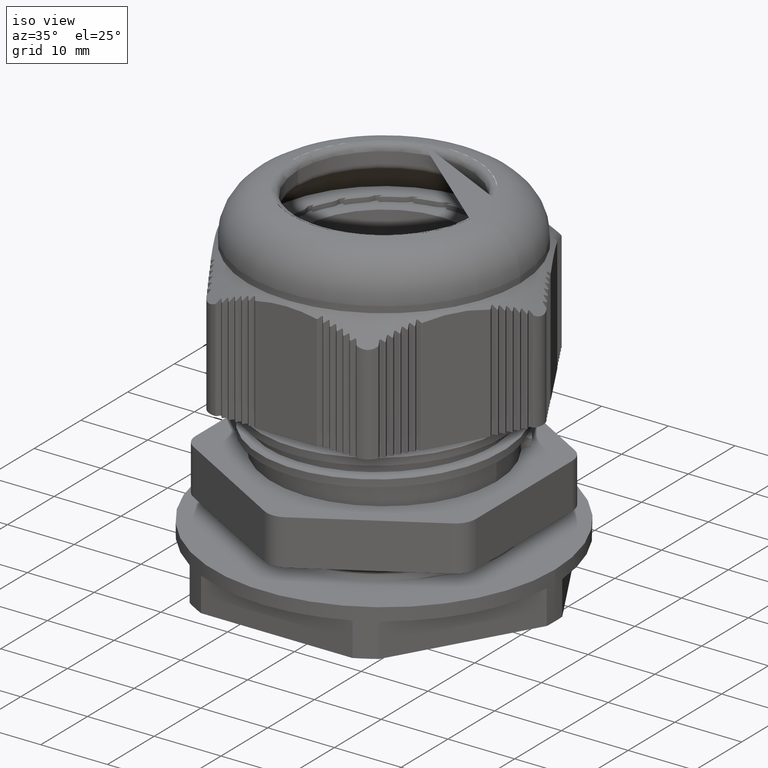
[diagram: clean part render]
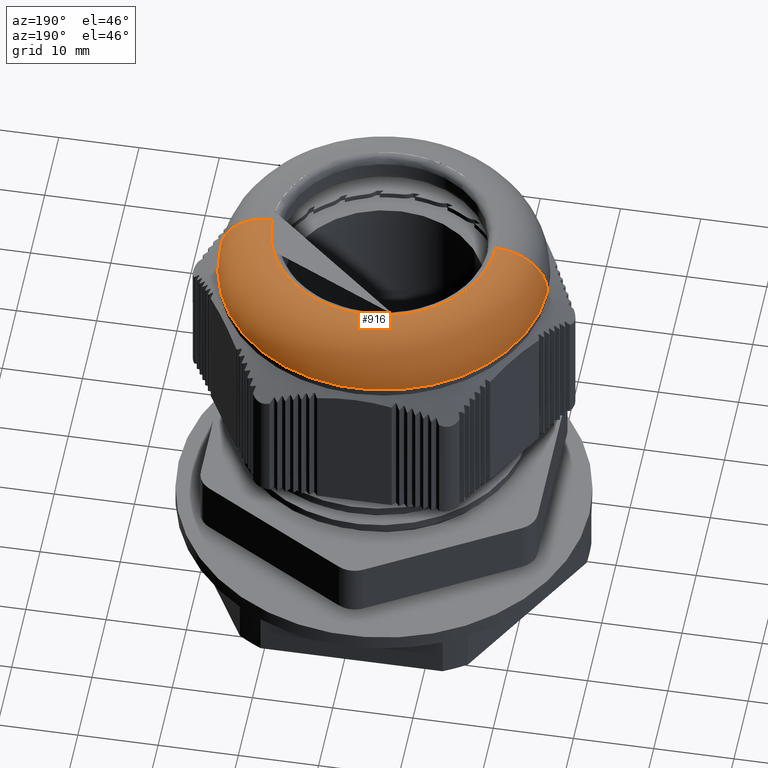
[diagram: tour spotlight — one face highlighted and labeled with its STEP entity id]
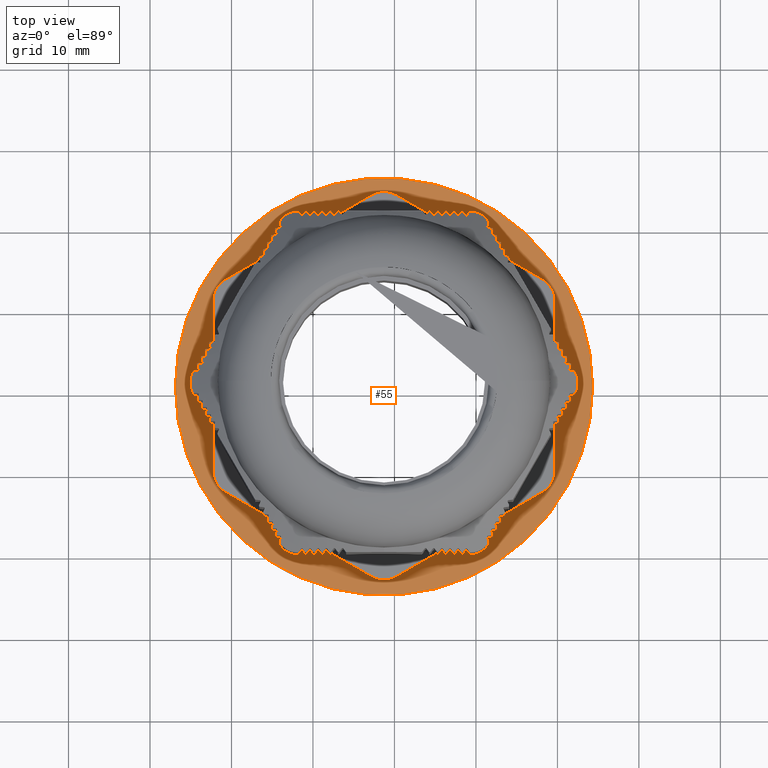
[diagram: tour spotlight — one face highlighted and labeled with its STEP entity id]
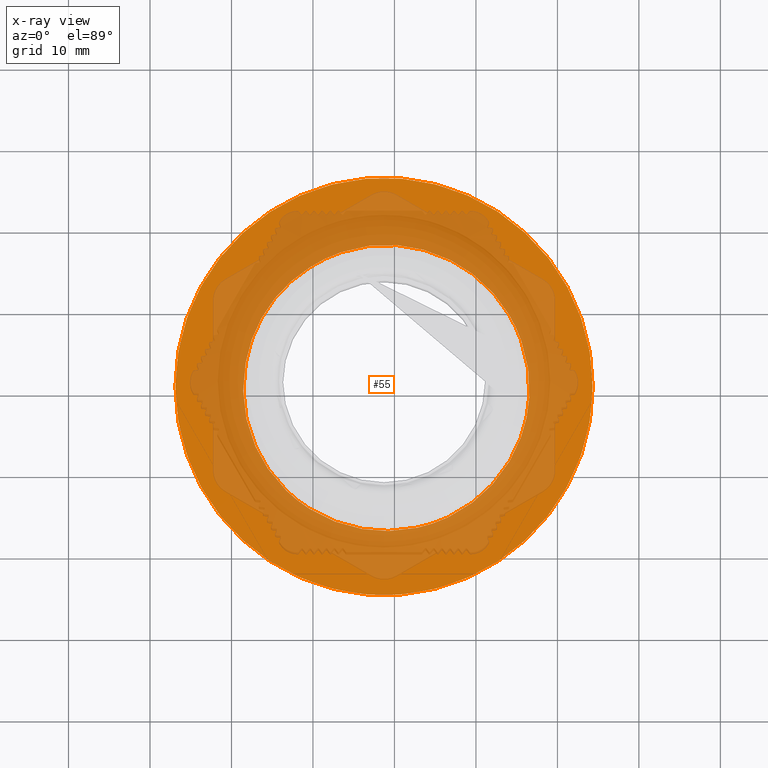
[diagram: x-ray of the same camera — body ghosted, this tour face saturated]
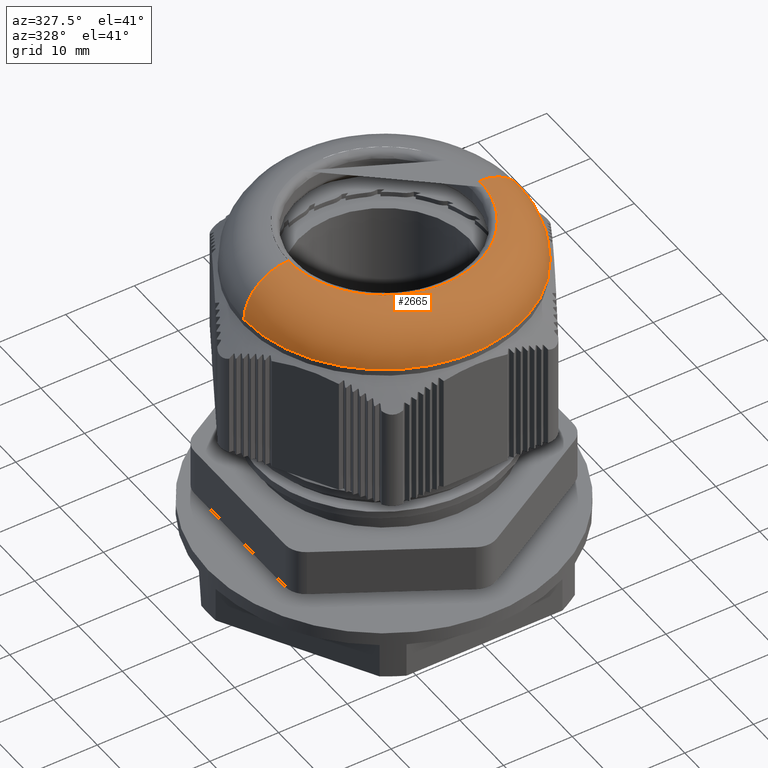
[diagram: tour spotlight — one face highlighted and labeled with its STEP entity id]
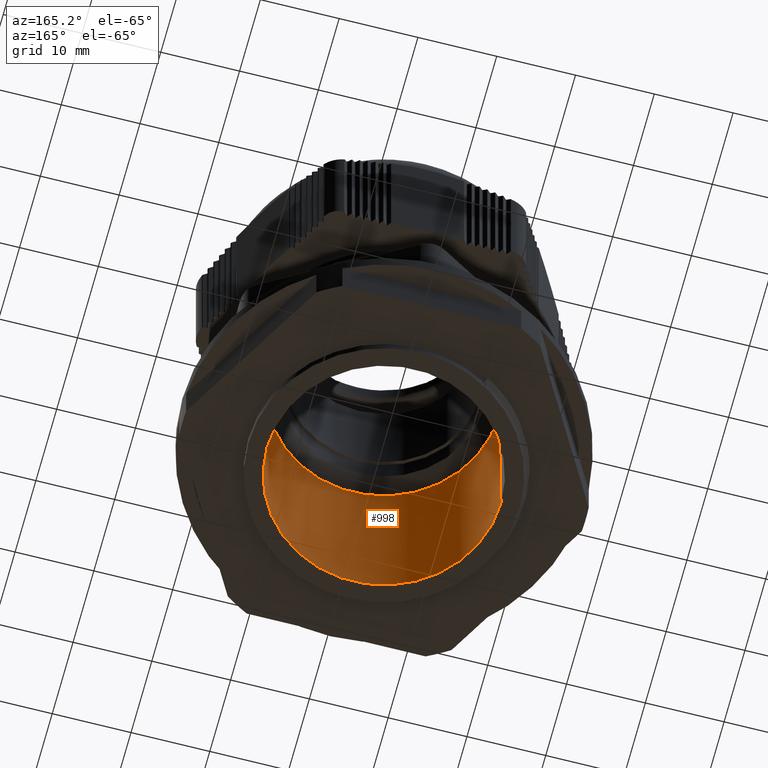
[diagram: tour spotlight — one face highlighted and labeled with its STEP entity id]
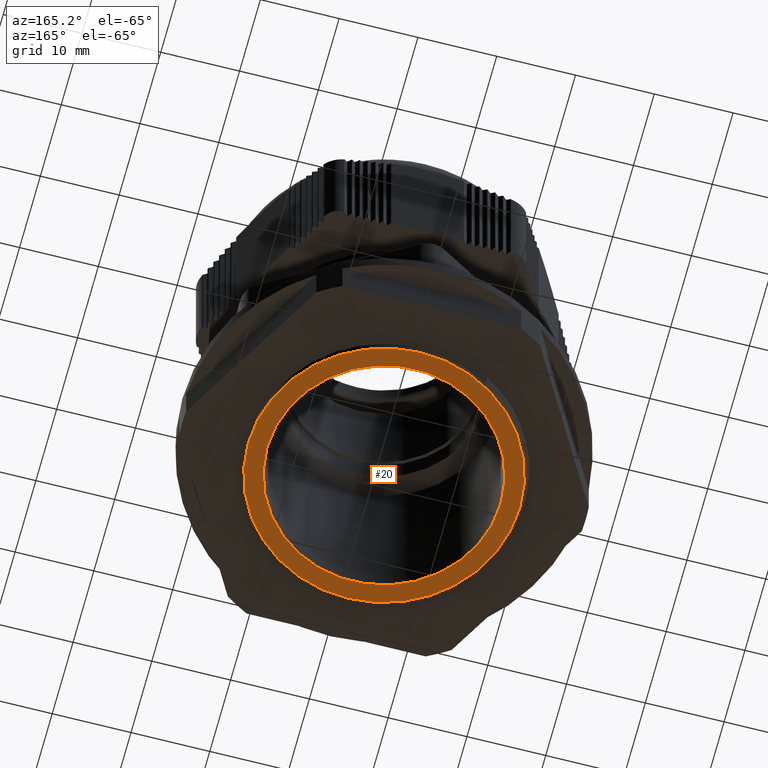
[diagram: tour spotlight — one face highlighted and labeled with its STEP entity id]
A machine part: a face-by-face anatomy tour. The part has 586 B-rep faces; the first image is the clean iso view, then the 5 largest visible faces are spotlighted one at a time (largest first), each with its STEP entity span.

Face 1 — auxiliary view, entity #916. In plain terms, the highlighted toroidal blend (fillet) surface has major radius 13.9 mm and minor (blend) radius 6.5 mm.
Definition (entity closure, byte-faithful):
#795 = EDGE_CURVE ( 'NONE', #20958, #21055, #22798, .T. ) ;
#855 = EDGE_CURVE ( 'NONE', #21101, #21022, #5496, .T. ) ;
#865 = EDGE_CURVE ( 'NONE', #21101, #20958, #22858, .T. ) ;
#871 = EDGE_CURVE ( 'NONE', #21022, #20991, #5487, .T. ) ;
#883 = EDGE_CURVE ( 'NONE', #20991, #21055, #22979, .T. ) ;
#916 = ADVANCED_FACE ( 'NONE', ( #9187 ), #22755, .T. ) ;
#3363 = EDGE_LOOP ( 'NONE', ( #19627, #19612, #19551, #19586, #19622 ) ) ;
#5487 = B_SPLINE_CURVE_WITH_KNOTS ( 'NONE', 3,
 ( #8931, #8954, #8957, #8929, #8940, #8922, #8966, #8920, #8963, #8923, #8967, #8969, #8972, #8933, #8945, #8971, #8938, #8947, #8937, #8939, #8956, #8973, #8948, #8958, #8949, #8974, #8959, #8924, #8960, #8975, #8961, #9007, #8979, #9012, #8992, #8984, #9029, #8990, #9030, #9031, #9020, #8994, #9005, #8993, #8991, #8987, #8981, #9032, #8995, #8980, #9033, #8996 ),
 .UNSPECIFIED., .F., .F.,
 ( 4, 1, 1, 1, 1, 2, 2, 1, 1, 1, 2, 2, 1, 1, 2, 2, 2, 2, 1, 1, 1, 2, 2, 1, 1, 1, 1, 2, 2, 1, 1, 1, 1, 2, 2, 4 ),
 ( 0.0000000000000000000, 0.06249999999981022100, 0.09374999999970755300, 0.1093749999996643200, 0.1171874999996433500, 0.1210937499996402500, 0.1249999999996371200, 0.1874999999995844200, 0.2187499999995570200, 0.2343749999995432800, 0.2421874999995423400, 0.2499999999995413700, 0.3124999999995803900, 0.3437499999996048200, 0.3593749999996105900, 0.3749999999996163600, 0.4374999999996356800, 0.4999999999996549400, 0.5624999999996742600, 0.5937499999996867000, 0.6093749999996929100, 0.6171874999996930200, 0.6249999999996931300, 0.6874999999997324400, 0.7187499999997518700, 0.7343749999997583000, 0.7421874999997643000, 0.7460937499997707400, 0.7499999999997771800, 0.8124999999998858700, 0.8437499999999401600, 0.8593749999999729100, 0.8671874999999914500, 0.8710937500000007800, 0.8750000000000099900, 1.000000000000000000 ),
 .UNSPECIFIED. ) ;
#5496 = B_SPLINE_CURVE_WITH_KNOTS ( 'NONE', 3,
 ( #8844, #8851, #8857, #8803, #8809, #8810, #8821, #8822, #8828, #8896, #8910, #8874, #8911, #8888, #8905, #8885, #8872, #8860, #8915, #8871, #8875, #8867, #8895, #8909, #8892, #8884, #8876, #8880, #8897, #8890, #8889, #8913, #8870, #8891, #8886, #8912, #8887, #8873, #8906, #8907, #8878, #8914, #8893, #8868, #8908, #8863, #8899, #8862, #8866, #8916, #8877, #8879 ),
 .UNSPECIFIED., .F., .F.,
 ( 4, 1, 1, 1, 1, 2, 2, 1, 1, 1, 2, 2, 1, 1, 2, 2, 2, 2, 1, 1, 1, 2, 2, 1, 1, 1, 1, 2, 2, 1, 1, 1, 1, 2, 2, 4 ),
 ( 0.0000000000000000000, 0.06249999999997790700, 0.09374999999996278000, 0.1093749999999552200, 0.1171874999999514300, 0.1210937499999495400, 0.1249999999999476400, 0.1874999999999620300, 0.2187499999999655300, 0.2343749999999672800, 0.2421874999999690800, 0.2499999999999709100, 0.3124999999999869500, 0.3437499999999948400, 0.3593749999999992800, 0.3750000000000037700, 0.4375000000000254200, 0.5000000000000470700, 0.5625000000000687200, 0.5937500000000874900, 0.6093750000000969200, 0.6171875000001075800, 0.6250000000001182400, 0.6875000000001952900, 0.7187500000002337000, 0.7343750000002582400, 0.7421875000002772200, 0.7460937500002798900, 0.7500000000002826600, 0.8125000000003198600, 0.8437500000003309600, 0.8593750000003366200, 0.8671875000003401700, 0.8710937500003419500, 0.8750000000003438400, 1.000000000000000000 ),
 .UNSPECIFIED. ) ;
#8589 = CARTESIAN_POINT ( 'NONE',  ( -671.2819160884045000, 330.9994562443066000, 46.92358769562345300 ) ) ;
#8599 = DIRECTION ( 'NONE',  ( 5.102127870519999300E-016, 5.102127870519999300E-016, 1.000000000000000000 ) ) ;
#8600 = DIRECTION ( 'NONE',  ( 1.000000000000000000, 0.0000000000000000000, -3.401418580346666500E-016 ) ) ;
#8803 = CARTESIAN_POINT ( 'NONE',  ( -657.4956498361164000, 332.7957495348105700, 53.42358769562345300 ) ) ;
#8809 = CARTESIAN_POINT ( 'NONE',  ( -657.5505907507326800, 333.1626390541385400, 53.42358769562343900 ) ) ;
#8810 = CARTESIAN_POINT ( 'NONE',  ( -657.5812261338172700, 333.3457891010768900, 53.42358769562344600 ) ) ;
#8821 = CARTESIAN_POINT ( 'NONE',  ( -657.5950337820917200, 333.4242188256094400, 53.42358769562344600 ) ) ;
#8822 = CARTESIAN_POINT ( 'NONE',  ( -657.6043895916921000, 333.4764912746917400, 53.42358769562343900 ) ) ;
#8828 = CARTESIAN_POINT ( 'NONE',  ( -657.6088609782455000, 333.5010955821307400, 53.42358769562343900 ) ) ;
#8844 = CARTESIAN_POINT ( 'NONE',  ( -657.3819160884044100, 330.9994562443073400, 53.42358769562343900 ) ) ;
#8851 = CARTESIAN_POINT ( 'NONE',  ( -657.3820100325842800, 331.4245966708641000, 53.42358769562344600 ) ) ;
#8857 = CARTESIAN_POINT ( 'NONE',  ( -657.4110874130956300, 332.0596127943507600, 53.42358769562346100 ) ) ;
#8860 = CARTESIAN_POINT ( 'NONE',  ( -658.8208614877036100, 337.1899217338966000, 53.42358769562343900 ) ) ;
#8862 = CARTESIAN_POINT ( 'NONE',  ( -668.6971132930824500, 344.6570272185311400, 53.42358769562343200 ) ) ;
#8863 = CARTESIAN_POINT ( 'NONE',  ( -668.5585916661954100, 344.6302391009364800, 53.42358769562343900 ) ) ;
#8866 = CARTESIAN_POINT ( 'NONE',  ( -668.7266046362608400, 344.6625782511762800, 53.42358769562343900 ) ) ;
#8867 = CARTESIAN_POINT ( 'NONE',  ( -659.5822064296328300, 338.5054792465636000, 53.42358769562343200 ) ) ;
#8868 = CARTESIAN_POINT ( 'NONE',  ( -667.9807863280153700, 344.5050897972163900, 53.42358769562343900 ) ) ;
#8870 = CARTESIAN_POINT ( 'NONE',  ( -663.6266763348204400, 342.6016265399655900, 53.42358769562345300 ) ) ;
#8871 = CARTESIAN_POINT ( 'NONE',  ( -659.3968264239471200, 338.2083560495416400, 53.42358769562344600 ) ) ;
#8872 = CARTESIAN_POINT ( 'NONE',  ( -658.5303017389082900, 336.5518222146850500, 53.42358769562342500 ) ) ;
#8873 = CARTESIAN_POINT ( 'NONE',  ( -665.9745253861902900, 343.8465138581918800, 53.42358769562343900 ) ) ;
#8874 = CARTESIAN_POINT ( 'NONE',  ( -658.0854865328167300, 335.3759962826242100, 53.42358769562345300 ) ) ;
#8875 = CARTESIAN_POINT ( 'NONE',  ( -659.5202590034734800, 338.4079936043394200, 53.42358769562345300 ) ) ;
#8876 = CARTESIAN_POINT ( 'NONE',  ( -661.7915624902822200, 341.1668268520441500, 53.42358769562342500 ) ) ;
#8877 = CARTESIAN_POINT ( 'NONE',  ( -670.4285258928948700, 344.8990763103771000, 53.42358769562343900 ) ) ;
#8878 = CARTESIAN_POINT ( 'NONE',  ( -666.1392700065708800, 343.9131621350226700, 53.42358769562344600 ) ) ;
#8879 = CARTESIAN_POINT ( 'NONE',  ( -671.2819160884047300, 344.8994562443066300, 53.42358769562343900 ) ) ;
#8880 = CARTESIAN_POINT ( 'NONE',  ( -662.3232065713451700, 341.6464482823866400, 53.42358769562343900 ) ) ;
#8884 = CARTESIAN_POINT ( 'NONE',  ( -661.1147011695961700, 340.4896541536099900, 53.42358769562343900 ) ) ;
#8885 = CARTESIAN_POINT ( 'NONE',  ( -658.3363033242467300, 336.0614915188311300, 53.42358769562343200 ) ) ;
#8886 = CARTESIAN_POINT ( 'NONE',  ( -664.6732514468546900, 343.2438636668031800, 53.42358769562343900 ) ) ;
#8887 = CARTESIAN_POINT ( 'NONE',  ( -665.7848956374233500, 343.7672408088979500, 53.42358769562343900 ) ) ;
#8888 = CARTESIAN_POINT ( 'NONE',  ( -658.2764103711350600, 335.9055089412288500, 53.42358769562344600 ) ) ;
#8889 = CARTESIAN_POINT ( 'NONE',  ( -663.4757376326937200, 342.5006063579315300, 53.42358769562344600 ) ) ;
#8890 = CARTESIAN_POINT ( 'NONE',  ( -663.3270778655063400, 342.3992453741940400, 53.42358769562343900 ) ) ;
#8891 = CARTESIAN_POINT ( 'NONE',  ( -664.0678939688547200, 342.8902323326563500, 53.42358769562344600 ) ) ;
#8892 = CARTESIAN_POINT ( 'NONE',  ( -660.7927830277301400, 340.1328975214053700, 53.42358769562345300 ) ) ;
#8893 = CARTESIAN_POINT ( 'NONE',  ( -667.2204327106977600, 344.3063413674789200, 53.42358769562342500 ) ) ;
#8895 = CARTESIAN_POINT ( 'NONE',  ( -659.9095666939136900, 339.0064420957272100, 53.42358769562343900 ) ) ;
#8896 = CARTESIAN_POINT ( 'NONE',  ( -657.6957392942063100, 333.9710961246138400, 53.42358769562344600 ) ) ;
#8897 = CARTESIAN_POINT ( 'NONE',  ( -662.9854546577095100, 342.1565549541908800, 53.42358769562344600 ) ) ;
#8899 = CARTESIAN_POINT ( 'NONE',  ( -668.6416738663065200, 344.6464095715692200, 53.42358769562344600 ) ) ;
#8905 = CARTESIAN_POINT ( 'NONE',  ( -658.3166398493564200, 336.0108714700957600, 53.42358769562346100 ) ) ;
#8906 = CARTESIAN_POINT ( 'NONE',  ( -666.0561952933462600, 343.8797573255473600, 53.42358769562342500 ) ) ;
#8907 = CARTESIAN_POINT ( 'NONE',  ( -666.1107307903006400, 343.9017572600897100, 53.42358769562343900 ) ) ;
#8908 = CARTESIAN_POINT ( 'NONE',  ( -668.3652717796411500, 344.5908000014663900, 53.42358769562344600 ) ) ;
#8909 = CARTESIAN_POINT ( 'NONE',  ( -660.1909652452467300, 339.3920412925951400, 53.42358769562343900 ) ) ;
#8910 = CARTESIAN_POINT ( 'NONE',  ( -657.8500510688255600, 334.6262649677246400, 53.42358769562343900 ) ) ;
#8911 = CARTESIAN_POINT ( 'NONE',  ( -658.2170555298790800, 335.7472038562247600, 53.42358769562344600 ) ) ;
#8912 = CARTESIAN_POINT ( 'NONE',  ( -665.4093696116084400, 343.6018748751199600, 53.42358769562344600 ) ) ;
#8913 = CARTESIAN_POINT ( 'NONE',  ( -663.5753441043717700, 342.5675916368086300, 53.42358769562343900 ) ) ;
#8914 = CARTESIAN_POINT ( 'NONE',  ( -666.5834735288845000, 344.0891375341537900, 53.42358769562342500 ) ) ;
#8915 = CARTESIAN_POINT ( 'NONE',  ( -659.2156644541469200, 337.9069403746039500, 53.42358769562346100 ) ) ;
#8916 = CARTESIAN_POINT ( 'NONE',  ( -669.5854304167303300, 344.8217245173760300, 53.42358769562343900 ) ) ;
#8920 = CARTESIAN_POINT ( 'NONE',  ( -673.7590148575212700, 344.6769709588897400, 53.42358769562342500 ) ) ;
#8922 = CARTESIAN_POINT ( 'NONE',  ( -673.6284614076203100, 344.7001069251281800, 53.42358769562343900 ) ) ;
#8923 = CARTESIAN_POINT ( 'NONE',  ( -674.2535559608401200, 344.5856330416724500, 53.42358769562346100 ) ) ;
#8924 = CARTESIAN_POINT ( 'NONE',  ( -681.9289081265576400, 339.9581657612491200, 53.42358769562344600 ) ) ;
#8925 = DIRECTION ( 'NONE',  ( 0.0000000000000000000, 0.0000000000000000000, 1.000000000000000000 ) ) ;
#8929 = CARTESIAN_POINT ( 'NONE',  ( -673.0788892587413600, 344.7855968205443000, 53.42358769562343900 ) ) ;
#8931 = CARTESIAN_POINT ( 'NONE',  ( -671.2819160884047300, 344.8994562443066300, 53.42358769562343900 ) ) ;
#8932 = CARTESIAN_POINT ( 'NONE',  ( -657.3819160884044100, 330.9994562443066000, 46.92358769562344600 ) ) ;
#8933 = CARTESIAN_POINT ( 'NONE',  ( -676.1879687817019000, 344.0049619630353300, 53.42358769562344600 ) ) ;
#8937 = CARTESIAN_POINT ( 'NONE',  ( -678.1894002210660800, 343.0657078775545300, 53.42358769562343900 ) ) ;
#8938 = CARTESIAN_POINT ( 'NONE',  ( -676.8342820605823800, 343.7510705930355900, 53.42358769562345300 ) ) ;
#8939 = CARTESIAN_POINT ( 'NONE',  ( -678.4908158951634500, 342.8845459081121600, 53.42358769562344600 ) ) ;
#8940 = CARTESIAN_POINT ( 'NONE',  ( -673.4454954948042800, 344.7307082709493200, 53.42358769562343900 ) ) ;
#8945 = CARTESIAN_POINT ( 'NONE',  ( -676.2933313122903200, 343.9647324841209300, 53.42358769562343200 ) ) ;
#8947 = CARTESIAN_POINT ( 'NONE',  ( -677.4723815811416900, 343.4605108436645700, 53.42358769562343200 ) ) ;
#8948 = CARTESIAN_POINT ( 'NONE',  ( -679.2889019411046500, 342.3718056375465200, 53.42358769562343200 ) ) ;
#8949 = CARTESIAN_POINT ( 'NONE',  ( -680.4153573674195700, 341.4885893031047300, 53.42358769562345300 ) ) ;
#8954 = CARTESIAN_POINT ( 'NONE',  ( -671.7075745186444900, 344.8992665469456300, 53.42358769562344600 ) ) ;
#8956 = CARTESIAN_POINT ( 'NONE',  ( -678.6904534492889500, 342.7611133288722800, 53.42358769562344600 ) ) ;
#8957 = CARTESIAN_POINT ( 'NONE',  ( -672.3429791448936600, 344.8701173515481700, 53.42358769562344600 ) ) ;
#8958 = CARTESIAN_POINT ( 'NONE',  ( -679.6745011386074100, 342.0904070855907000, 53.42358769562343900 ) ) ;
#8959 = CARTESIAN_POINT ( 'NONE',  ( -681.4492866961904800, 340.4898098423561200, 53.42358769562343200 ) ) ;
#8960 = CARTESIAN_POINT ( 'NONE',  ( -682.4390147983475600, 339.2959176749064300, 53.42358769562343900 ) ) ;
#8961 = CARTESIAN_POINT ( 'NONE',  ( -682.7830662020604700, 338.8056346999677000, 53.42358769562343900 ) ) ;
#8963 = CARTESIAN_POINT ( 'NONE',  ( -673.7835554267175000, 344.6725113542681200, 53.42358769562343900 ) ) ;
#8966 = CARTESIAN_POINT ( 'NONE',  ( -673.7068031119956700, 344.6863155474144400, 53.42358769562343900 ) ) ;
#8967 = CARTESIAN_POINT ( 'NONE',  ( -674.9087247980498900, 344.4313212694284500, 53.42358769562342500 ) ) ;
#8968 = DIRECTION ( 'NONE',  ( -1.224646799147355900E-016, 1.000000000000000000, -5.102127870519998300E-016 ) ) ;
#8969 = CARTESIAN_POINT ( 'NONE',  ( -675.6584561163942900, 344.1958858040511000, 53.42358769562343200 ) ) ;
#8971 = CARTESIAN_POINT ( 'NONE',  ( -676.3439513627075700, 343.9450690085590200, 53.42358769562343900 ) ) ;
#8972 = CARTESIAN_POINT ( 'NONE',  ( -676.0296636942996400, 344.0643168052558800, 53.42358769562343900 ) ) ;
#8973 = CARTESIAN_POINT ( 'NONE',  ( -678.7879390903549400, 342.6991659033821000, 53.42358769562343900 ) ) ;
#8974 = CARTESIAN_POINT ( 'NONE',  ( -680.7721139976912400, 341.1666711631578400, 53.42358769562344600 ) ) ;
#8975 = CARTESIAN_POINT ( 'NONE',  ( -682.6817052183328100, 338.9542944671387700, 53.42358769562345300 ) ) ;
#8979 = CARTESIAN_POINT ( 'NONE',  ( -682.8840863841886600, 338.6546959976990400, 53.42358769562342500 ) ) ;
#8980 = CARTESIAN_POINT ( 'NONE',  ( -685.1042482318584900, 332.6955968938340800, 53.42358769562342500 ) ) ;
#8981 = CARTESIAN_POINT ( 'NONE',  ( -684.9288694311438800, 333.6396984275306700, 53.42358769562345300 ) ) ;
#8984 = CARTESIAN_POINT ( 'NONE',  ( -683.8843347180848000, 336.8720027228379200, 53.42358769562344600 ) ) ;
#8987 = CARTESIAN_POINT ( 'NONE',  ( -684.9126989714565100, 333.7227806001527000, 53.42358769562345300 ) ) ;
#8990 = CARTESIAN_POINT ( 'NONE',  ( -684.1289737019409400, 336.3068469470496800, 53.42358769562343900 ) ) ;
#8991 = CARTESIAN_POINT ( 'NONE',  ( -684.8732598948835200, 333.9161004292015500, 53.42358769562343900 ) ) ;
#8992 = CARTESIAN_POINT ( 'NONE',  ( -683.5263235093891600, 337.6081208881751100, 53.42358769562343900 ) ) ;
#8993 = CARTESIAN_POINT ( 'NONE',  ( -684.7875497258604600, 334.3005857923566900, 53.42358769562343200 ) ) ;
#8994 = CARTESIAN_POINT ( 'NONE',  ( -684.3715974426720500, 335.6978986420361400, 53.42358769562343900 ) ) ;
#8995 = CARTESIAN_POINT ( 'NONE',  ( -684.9450360993267900, 333.5547784783817100, 53.42358769562342500 ) ) ;
#8996 = CARTESIAN_POINT ( 'NONE',  ( -685.1819160884044800, 330.9994562443062600, 53.42358769562343900 ) ) ;
#9005 = CARTESIAN_POINT ( 'NONE',  ( -684.5888013243054500, 335.0609393388957100, 53.42358769562343200 ) ) ;
#9007 = CARTESIAN_POINT ( 'NONE',  ( -682.8500514809303500, 338.7060282283016500, 53.42358769562344600 ) ) ;
#9012 = CARTESIAN_POINT ( 'NONE',  ( -683.1726921758975100, 338.2134783651705400, 53.42358769562344600 ) ) ;
#9020 = CARTESIAN_POINT ( 'NONE',  ( -684.1956219751028800, 336.1421023362316900, 53.42358769562344600 ) ) ;
#9029 = CARTESIAN_POINT ( 'NONE',  ( -684.0497006523381700, 336.4964766962919500, 53.42358769562344600 ) ) ;
#9030 = CARTESIAN_POINT ( 'NONE',  ( -684.1622171694444900, 336.2251770396667900, 53.42358769562344600 ) ) ;
#9031 = CARTESIAN_POINT ( 'NONE',  ( -684.1842171040883600, 336.1706415425558100, 53.42358769562343200 ) ) ;
#9032 = CARTESIAN_POINT ( 'NONE',  ( -684.9394870705569900, 333.5842590197124800, 53.42358769562343200 ) ) ;
#9033 = CARTESIAN_POINT ( 'NONE',  ( -685.1816000248588800, 331.8525014176730100, 53.42358769562343200 ) ) ;
#9040 = DIRECTION ( 'NONE',  ( 2.603170880713694400E-031, -1.000000000000000000, 5.102127870519999300E-016 ) ) ;
#9063 = DIRECTION ( 'NONE',  ( 0.0000000000000000000, 0.0000000000000000000, -1.000000000000000000 ) ) ;
#9084 = CARTESIAN_POINT ( 'NONE',  ( -685.1819160884044800, 330.9994562443066000, 46.92358769562346100 ) ) ;
#9155 = DIRECTION ( 'NONE',  ( -5.102127870519999300E-016, -5.102127870519999300E-016, -1.000000000000000000 ) ) ;
#9187 = FACE_OUTER_BOUND ( 'NONE', #3363, .T. ) ;
#9195 = CARTESIAN_POINT ( 'NONE',  ( -671.2819160884045000, 330.9994562443066000, 46.92358769562345300 ) ) ;
#9196 = DIRECTION ( 'NONE',  ( -1.000000000000000000, 8.677236269045645100E-032, 5.102127870519999300E-016 ) ) ;
#18622 = CARTESIAN_POINT ( 'NONE',  ( -650.8819160884044100, 330.9994562443066000, 46.92358769562344600 ) ) ;
#18707 = CARTESIAN_POINT ( 'NONE',  ( -685.1819160884044800, 330.9994562443062600, 53.42358769562343900 ) ) ;
#19551 = ORIENTED_EDGE ( 'NONE', *, *, #795, .T. ) ;
#19586 = ORIENTED_EDGE ( 'NONE', *, *, #883, .F. ) ;
#19612 = ORIENTED_EDGE ( 'NONE', *, *, #865, .T. ) ;
#19622 = ORIENTED_EDGE ( 'NONE', *, *, #871, .F. ) ;
#19627 = ORIENTED_EDGE ( 'NONE', *, *, #855, .F. ) ;
#20138 = CARTESIAN_POINT ( 'NONE',  ( -671.2819160884047300, 344.8994562443066300, 53.42358769562343900 ) ) ;
#20156 = CARTESIAN_POINT ( 'NONE',  ( -691.6819160884045900, 330.9994562443066000, 46.92358769562346100 ) ) ;
#20197 = CARTESIAN_POINT ( 'NONE',  ( -657.3819160884044100, 330.9994562443073400, 53.42358769562343900 ) ) ;
#20958 = VERTEX_POINT ( 'NONE', #18622 ) ;
#20991 = VERTEX_POINT ( 'NONE', #18707 ) ;
#21022 = VERTEX_POINT ( 'NONE', #20138 ) ;
#21055 = VERTEX_POINT ( 'NONE', #20156 ) ;
#21101 = VERTEX_POINT ( 'NONE', #20197 ) ;
#22298 = AXIS2_PLACEMENT_3D ( 'NONE', #9084, #9040, #9063 ) ;
#22755 = TOROIDAL_SURFACE ( 'NONE', #22863, 13.90000000000002300, 6.500000000000037300 ) ;
#22798 = CIRCLE ( 'NONE', #22824, 20.40000000000008400 ) ;
#22824 = AXIS2_PLACEMENT_3D ( 'NONE', #8589, #8599, #8600 ) ;
#22858 = CIRCLE ( 'NONE', #22859, 6.500000000000040900 ) ;
#22859 = AXIS2_PLACEMENT_3D ( 'NONE', #8932, #8968, #8925 ) ;
#22863 = AXIS2_PLACEMENT_3D ( 'NONE', #9195, #9155, #9196 ) ;
#22979 = CIRCLE ( 'NONE', #22298, 6.500000000000040900 ) ;

Face 2 — top view, entity #55. An x-ray twin of the same camera follows (body ghosted, this face saturated) — the face is partly hidden behind the body. In plain terms, the highlighted planar face has unit normal (0, 0, -1).
Definition (entity closure, byte-faithful):
#55 = ADVANCED_FACE ( 'NONE', ( #4358, #4713 ), #4717, .F. ) ;
#1307 = EDGE_CURVE ( 'NONE', #1642, #1659, #10552, .T. ) ;
#1333 = EDGE_CURVE ( 'NONE', #1659, #1642, #10667, .T. ) ;
#1642 = VERTEX_POINT ( 'NONE', #11656 ) ;
#1659 = VERTEX_POINT ( 'NONE', #11712 ) ;
#1885 = EDGE_CURVE ( 'NONE', #22211, #22213, #5586, .T. ) ;
#1898 = EDGE_CURVE ( 'NONE', #22222, #22211, #11048, .T. ) ;
#1937 = EDGE_CURVE ( 'NONE', #22207, #22222, #5583, .T. ) ;
#1970 = EDGE_CURVE ( 'NONE', #22213, #22207, #5573, .T. ) ;
#3254 = EDGE_LOOP ( 'NONE', ( #23204, #23200 ) ) ;
#3267 = EDGE_LOOP ( 'NONE', ( #23193, #23210, #23217, #23221 ) ) ;
#4358 = FACE_OUTER_BOUND ( 'NONE', #3254, .T. ) ;
#4681 = CARTESIAN_POINT ( 'NONE',  ( -652.0319160884045000, 330.9994562443066000, 8.595886070432577200 ) ) ;
#4684 = DIRECTION ( 'NONE',  ( -1.000000000000000000, 0.0000000000000000000, -0.0000000000000000000 ) ) ;
#4689 = DIRECTION ( 'NONE',  ( 0.0000000000000000000, 0.0000000000000000000, -1.000000000000000000 ) ) ;
#4713 = FACE_BOUND ( 'NONE', #3267, .T. ) ;
#4717 = PLANE ( 'NONE',  #22967 ) ;
#5573 = B_SPLINE_CURVE_WITH_KNOTS ( 'NONE', 3,
 ( #12704, #12706, #12690, #12724, #12716, #12717, #12697, #12707, #12689, #12718, #12708, #12692, #12710, #12681, #12711, #12685, #12719, #12686, #12720, #12721 ),
 .UNSPECIFIED., .F., .F.,
 ( 4, 2, 2, 2, 2, 2, 2, 2, 2, 4 ),
 ( 8.688869536365456900E-016, 0.002341931280329541100, 0.004683862560658213000, 0.007025793840986885000, 0.009367725121315556900, 0.01170965640164422900, 0.01288062204180863900, 0.01405158768197305200, 0.01639351896230198000, 0.01873545024263090900 ),
 .UNSPECIFIED. ) ;
#5583 = B_SPLINE_CURVE_WITH_KNOTS ( 'NONE', 3,
 ( #12516, #12525, #12527, #12500, #12495, #12497, #12490, #12468, #12493, #12476, #12499, #12501, #12481, #12482, #12469, #12470, #12471, #12474, #12475, #12477, #12478, #12479, #12480, #12576, #12577, #12571, #12551, #12566, #12572, #12573, #12555, #12549, #12550, #12544, #12567, #12540, #12533, #12542, #12556, #12537, #12538, #12574, #12552, #12579 ),
 .UNSPECIFIED., .F., .F.,
 ( 4, 2, 2, 2, 2, 2, 2, 2, 2, 2, 2, 2, 2, 2, 2, 2, 2, 2, 2, 2, 2, 4 ),
 ( 0.0000000000000000000, 0.001217655979877493200, 0.002435311959754986300, 0.004870623919509972600, 0.007305935879264959000, 0.008523591859142507600, 0.009741247839020058000, 0.01217655979877531200, 0.01339421577865291200, 0.01461187175853050900, 0.01948249567804124400, 0.02070015165791901800, 0.02191780763779679900, 0.02435311959755259000, 0.02557077557743049300, 0.02678843155730839200, 0.02922374351706449500, 0.03165905547682060200, 0.03287671145669881400, 0.03409436743657701800, 0.03652967939633342700, 0.03896499135608984300 ),
 .UNSPECIFIED. ) ;
#5586 = B_SPLINE_CURVE_WITH_KNOTS ( 'NONE', 3,
 ( #12265, #12288, #12280, #12273, #12275, #12276, #12278, #12281, #12282, #12283, #12284, #12242, #12285, #12325, #12305, #12294, #12339, #12306, #12308, #12316, #12317, #12320, #12309, #12315, #12310, #12331, #12299, #12307, #12329, #12312, #12332, #12311, #12326, #12328, #12340, #12293 ),
 .UNSPECIFIED., .F., .F.,
 ( 4, 2, 2, 2, 2, 2, 2, 2, 2, 2, 2, 2, 2, 2, 2, 2, 2, 4 ),
 ( 1.665334536937734800E-016, 0.001215795088025615200, 0.002431590176051063900, 0.004863180352102127800, 0.007294770528153191200, 0.008510565616178683900, 0.009726360704204179200, 0.01215795088025544400, 0.01458954105630671200, 0.01945272140840944800, 0.02431590176051218200, 0.02674749193656374100, 0.02917908211261529400, 0.03039487720064124700, 0.03161067228866720100, 0.03404226246471943300, 0.03647385264077167300, 0.03890544281682390600 ),
 .UNSPECIFIED. ) ;
#10296 = DIRECTION ( 'NONE',  ( 1.000000000000000000, 0.0000000000000000000, 0.0000000000000000000 ) ) ;
#10304 = DIRECTION ( 'NONE',  ( 0.0000000000000000000, 0.0000000000000000000, 1.000000000000000000 ) ) ;
#10316 = CARTESIAN_POINT ( 'NONE',  ( -671.2819160884045000, 330.9994562443066000, 8.595886070432577200 ) ) ;
#10409 = DIRECTION ( 'NONE',  ( 1.000000000000000000, 0.0000000000000000000, 0.0000000000000000000 ) ) ;
#10427 = CARTESIAN_POINT ( 'NONE',  ( -671.2819160884045000, 330.9994562443066000, 8.595886070432577200 ) ) ;
#10428 = DIRECTION ( 'NONE',  ( 0.0000000000000000000, 0.0000000000000000000, 1.000000000000000000 ) ) ;
#10552 = CIRCLE ( 'NONE', #10562, 25.59999999999995500 ) ;
#10562 = AXIS2_PLACEMENT_3D ( 'NONE', #10316, #10304, #10296 ) ;
#10645 = AXIS2_PLACEMENT_3D ( 'NONE', #10427, #10428, #10409 ) ;
#10667 = CIRCLE ( 'NONE', #10645, 25.59999999999995500 ) ;
#11048 = CIRCLE ( 'NONE', #11052, 17.23069359080486900 ) ;
#11052 = AXIS2_PLACEMENT_3D ( 'NONE', #12375, #12356, #12343 ) ;
#11656 = CARTESIAN_POINT ( 'NONE',  ( -645.6819160884044800, 330.9994562443066000, 8.595886070432577200 ) ) ;
#11712 = CARTESIAN_POINT ( 'NONE',  ( -696.8819160884044100, 330.9994562443066000, 8.595886070432577200 ) ) ;
#12242 = CARTESIAN_POINT ( 'NONE',  ( -687.6749744450727300, 325.2029982689318800, 8.595886070432580800 ) ) ;
#12265 = CARTESIAN_POINT ( 'NONE',  ( -688.2577399861797900, 333.9521874424007100, 8.595903911110822200 ) ) ;
#12273 = CARTESIAN_POINT ( 'NONE',  ( -688.4920066516166300, 332.3481021699147400, 8.595886070432570100 ) ) ;
#12275 = CARTESIAN_POINT ( 'NONE',  ( -688.5258740265984400, 331.9430233609970200, 8.595886070432577200 ) ) ;
#12276 = CARTESIAN_POINT ( 'NONE',  ( -688.5845483557232000, 330.7340007791303800, 8.595886070432577200 ) ) ;
#12278 = CARTESIAN_POINT ( 'NONE',  ( -688.5672471405949900, 329.9326371730176700, 8.595886070432579000 ) ) ;
#12280 = CARTESIAN_POINT ( 'NONE',  ( -688.3960427075674000, 333.1530786111276300, 8.595886070432571900 ) ) ;
#12281 = CARTESIAN_POINT ( 'NONE',  ( -688.4226626951247000, 328.3389776484666500, 8.595886070432579000 ) ) ;
#12282 = CARTESIAN_POINT ( 'NONE',  ( -688.2953832126797800, 327.5466814210256500, 8.595886070432579000 ) ) ;
#12283 = CARTESIAN_POINT ( 'NONE',  ( -688.0192517813011400, 326.3652625711140400, 8.595886070432575500 ) ) ;
#12284 = CARTESIAN_POINT ( 'NONE',  ( -687.9128812253552500, 325.9729519417054500, 8.595886070432580800 ) ) ;
#12285 = CARTESIAN_POINT ( 'NONE',  ( -687.5431014433038400, 324.8237831160780000, 8.595886070432582600 ) ) ;
#12288 = CARTESIAN_POINT ( 'NONE',  ( -688.3339796750625500, 333.5536162163959900, 8.595886070432575500 ) ) ;
#12293 = CARTESIAN_POINT ( 'NONE',  ( -663.4038189249321200, 314.9515469506823700, 8.595886070430443800 ) ) ;
#12294 = CARTESIAN_POINT ( 'NONE',  ( -685.9882909521089700, 321.5749407968175400, 8.595886070432579000 ) ) ;
#12299 = CARTESIAN_POINT ( 'NONE',  ( -672.0129831333467800, 313.2803625727892700, 8.595886070432579000 ) ) ;
#12305 = CARTESIAN_POINT ( 'NONE',  ( -686.7696901952275500, 322.9785678851991400, 8.595886070432577200 ) ) ;
#12306 = CARTESIAN_POINT ( 'NONE',  ( -684.0897182152110600, 318.9629526904268500, 8.595886070432582600 ) ) ;
#12307 = CARTESIAN_POINT ( 'NONE',  ( -671.2083879050236400, 313.2519393353296700, 8.595886070432575500 ) ) ;
#12308 = CARTESIAN_POINT ( 'NONE',  ( -682.9612800763868600, 317.8271929272388500, 8.595886070432586100 ) ) ;
#12309 = CARTESIAN_POINT ( 'NONE',  ( -675.9591316488850900, 313.9467354425393600, 8.595886070432573700 ) ) ;
#12310 = CARTESIAN_POINT ( 'NONE',  ( -673.6083209747813500, 313.4317365824578600, 8.595886070432577200 ) ) ;
#12311 = CARTESIAN_POINT ( 'NONE',  ( -667.2123149000727800, 313.6411242125817000, 8.595886070432579000 ) ) ;
#12312 = CARTESIAN_POINT ( 'NONE',  ( -669.5887864766149300, 313.2913298382008000, 8.595886070432580800 ) ) ;
#12315 = CARTESIAN_POINT ( 'NONE',  ( -674.3971903737340200, 313.5674698014393600, 8.595886070432571900 ) ) ;
#12316 = CARTESIAN_POINT ( 'NONE',  ( -680.3779126657324200, 315.8623711273059500, 8.595886070432580800 ) ) ;
#12317 = CARTESIAN_POINT ( 'NONE',  ( -678.9820731891110200, 315.0783426779956400, 8.595886070432575500 ) ) ;
#12320 = CARTESIAN_POINT ( 'NONE',  ( -676.7371366384519400, 314.1928253029917100, 8.595886070432570100 ) ) ;
#12325 = CARTESIAN_POINT ( 'NONE',  ( -687.1094077630714300, 323.7031175973060600, 8.595886070432577200 ) ) ;
#12326 = CARTESIAN_POINT ( 'NONE',  ( -666.4336554579268700, 313.8281385081032200, 8.595886070432582600 ) ) ;
#12328 = CARTESIAN_POINT ( 'NONE',  ( -664.8969722727586000, 314.3098211088004600, 8.595886070432579000 ) ) ;
#12329 = CARTESIAN_POINT ( 'NONE',  ( -670.8028877435429000, 313.2513698039695100, 8.595886070432580800 ) ) ;
#12331 = CARTESIAN_POINT ( 'NONE',  ( -672.4132886244083200, 313.3081680496196700, 8.595886070432575500 ) ) ;
#12332 = CARTESIAN_POINT ( 'NONE',  ( -668.7898812186651900, 313.3727240993840200, 8.595886070432577200 ) ) ;
#12339 = CARTESIAN_POINT ( 'NONE',  ( -685.5433567475870400, 320.8911205905066600, 8.595886070432580800 ) ) ;
#12340 = CARTESIAN_POINT ( 'NONE',  ( -664.1378201418019700, 314.6056309601420900, 8.595886070432561300 ) ) ;
#12343 = DIRECTION ( 'NONE',  ( -1.000000000000000000, -2.899479109465049800E-014, 0.0000000000000000000 ) ) ;
#12356 = DIRECTION ( 'NONE',  ( -0.0000000000000000000, -0.0000000000000000000, 1.000000000000000000 ) ) ;
#12375 = CARTESIAN_POINT ( 'NONE',  ( -671.2819160884045000, 330.9994562443066000, 8.595886070432577200 ) ) ;
#12468 = CARTESIAN_POINT ( 'NONE',  ( -653.9885710156703500, 335.2186794548992500, 8.595886070432573700 ) ) ;
#12469 = CARTESIAN_POINT ( 'NONE',  ( -656.2506897239437600, 340.3626677535158400, 8.595886070432582600 ) ) ;
#12470 = CARTESIAN_POINT ( 'NONE',  ( -656.9494689801159700, 341.3442584386512000, 8.595886070432582600 ) ) ;
#12471 = CARTESIAN_POINT ( 'NONE',  ( -657.1941693323333300, 341.6642950752870400, 8.595886070432580800 ) ) ;
#12474 = CARTESIAN_POINT ( 'NONE',  ( -657.7076442648567500, 342.2897277278839900, 8.595886070432577200 ) ) ;
#12475 = CARTESIAN_POINT ( 'NONE',  ( -657.9770277646487100, 342.5956093685820700, 8.595886070432577200 ) ) ;
#12476 = CARTESIAN_POINT ( 'NONE',  ( -654.6212995214074200, 337.1323318022567700, 8.595886070432575500 ) ) ;
#12477 = CARTESIAN_POINT ( 'NONE',  ( -659.3637591000361900, 344.0646940131264800, 8.595886070432575500 ) ) ;
#12478 = CARTESIAN_POINT ( 'NONE',  ( -660.6125305393793500, 345.0690671799767400, 8.595886070432573700 ) ) ;
#12479 = CARTESIAN_POINT ( 'NONE',  ( -662.3487603603489300, 346.1096494856512300, 8.595886070432573700 ) ) ;
#12480 = CARTESIAN_POINT ( 'NONE',  ( -662.7052830369787000, 346.3068654510690300, 8.595886070432573700 ) ) ;
#12481 = CARTESIAN_POINT ( 'NONE',  ( -655.2731047018031600, 338.6129315429599300, 8.595886070432571900 ) ) ;
#12482 = CARTESIAN_POINT ( 'NONE',  ( -655.8319608531039600, 339.6796157602524300, 8.595886070432573700 ) ) ;
#12490 = CARTESIAN_POINT ( 'NONE',  ( -653.6526987040638200, 333.6517416822976000, 8.595886070432577200 ) ) ;
#12493 = CARTESIAN_POINT ( 'NONE',  ( -654.2091545277720600, 335.9910149012794700, 8.595886070432579000 ) ) ;
#12495 = CARTESIAN_POINT ( 'NONE',  ( -653.4455674512701100, 331.6480874473002700, 8.595886070432577200 ) ) ;
#12497 = CARTESIAN_POINT ( 'NONE',  ( -653.5374110045185000, 332.8571391234652300, 8.595886070432575500 ) ) ;
#12499 = CARTESIAN_POINT ( 'NONE',  ( -654.7727269046663400, 337.5106840088362800, 8.595886070432580800 ) ) ;
#12500 = CARTESIAN_POINT ( 'NONE',  ( -653.4285533449042300, 331.2413421398750300, 8.595886070432580800 ) ) ;
#12501 = CARTESIAN_POINT ( 'NONE',  ( -655.0984214372124400, 338.2503143667988200, 8.595886070432579000 ) ) ;
#12516 = CARTESIAN_POINT ( 'NONE',  ( -653.4580151045718100, 329.6180217247084600, 8.595886070432579000 ) ) ;
#12525 = CARTESIAN_POINT ( 'NONE',  ( -653.4332870269478200, 330.0236680610246400, 8.595886070432579000 ) ) ;
#12527 = CARTESIAN_POINT ( 'NONE',  ( -653.4224673647814800, 330.4294616050657400, 8.595886070432582600 ) ) ;
#12533 = CARTESIAN_POINT ( 'NONE',  ( -674.4168301875641900, 348.0577438073057700, 8.595886070432577200 ) ) ;
#12537 = CARTESIAN_POINT ( 'NONE',  ( -676.7446499435584400, 347.4314809486387500, 8.595886070432577200 ) ) ;
#12538 = CARTESIAN_POINT ( 'NONE',  ( -677.4948032411093700, 347.1483360378472300, 8.595886070432575500 ) ) ;
#12540 = CARTESIAN_POINT ( 'NONE',  ( -674.0175949916249500, 348.1334922393024300, 8.595886070432579000 ) ) ;
#12542 = CARTESIAN_POINT ( 'NONE',  ( -675.2034928531090800, 347.8799230751155300, 8.595886070432577200 ) ) ;
#12544 = CARTESIAN_POINT ( 'NONE',  ( -672.0130277313669500, 348.3838577415201600, 8.595886070432573700 ) ) ;
#12549 = CARTESIAN_POINT ( 'NONE',  ( -669.6093497521167100, 348.3600999438845100, 8.595886070432580800 ) ) ;
#12550 = CARTESIAN_POINT ( 'NONE',  ( -670.4103709054059000, 348.4048567901459700, 8.595886070432573700 ) ) ;
#12551 = CARTESIAN_POINT ( 'NONE',  ( -665.6550159118697800, 347.5770235273487300, 8.595886070432573700 ) ) ;
#12552 = CARTESIAN_POINT ( 'NONE',  ( -679.6744518221351000, 346.0852379158144500, 8.595886070432571900 ) ) ;
#12555 = CARTESIAN_POINT ( 'NONE',  ( -668.4082887680709700, 348.2083075915269300, 8.595886070432580800 ) ) ;
#12556 = CARTESIAN_POINT ( 'NONE',  ( -675.5921972097240800, 347.7776645605865200, 8.595886070432579000 ) ) ;
#12566 = CARTESIAN_POINT ( 'NONE',  ( -666.8188291177371000, 347.8931856951363100, 8.595886070432571900 ) ) ;
#12567 = CARTESIAN_POINT ( 'NONE',  ( -672.8146633564122100, 348.3181104116673100, 8.595886070432577200 ) ) ;
#12571 = CARTESIAN_POINT ( 'NONE',  ( -664.8977946600942900, 347.3144408360614600, 8.595886070432570100 ) ) ;
#12572 = CARTESIAN_POINT ( 'NONE',  ( -667.2114527107423800, 347.9855591645810500, 8.595886070432580800 ) ) ;
#12573 = CARTESIAN_POINT ( 'NONE',  ( -668.0064547097108500, 348.1432142962964900, 8.595886070432579000 ) ) ;
#12574 = CARTESIAN_POINT ( 'NONE',  ( -678.9583949875185500, 346.4761292559458100, 8.595886070432575500 ) ) ;
#12576 = CARTESIAN_POINT ( 'NONE',  ( -663.4251362493032500, 346.6732294986537700, 8.595886070432571900 ) ) ;
#12577 = CARTESIAN_POINT ( 'NONE',  ( -663.7898081208179500, 346.8432326112299500, 8.595886070432571900 ) ) ;
#12579 = CARTESIAN_POINT ( 'NONE',  ( -680.3584738769681100, 345.6457151636030900, 8.595886069402167700 ) ) ;
#12681 = CARTESIAN_POINT ( 'NONE',  ( -654.6226269792700800, 324.3654916815729100, 8.595886070432579000 ) ) ;
#12685 = CARTESIAN_POINT ( 'NONE',  ( -654.1100128690033000, 325.8220016145283500, 8.595886070438048400 ) ) ;
#12686 = CARTESIAN_POINT ( 'NONE',  ( -653.6070681944022500, 328.0721456299313000, 8.595886070432674900 ) ) ;
#12689 = CARTESIAN_POINT ( 'NONE',  ( -656.8605461368491700, 320.3065516347512000, 8.595886070432580800 ) ) ;
#12690 = CARTESIAN_POINT ( 'NONE',  ( -662.0137201166436400, 315.6678037038335000, 8.595886070432573700 ) ) ;
#12692 = CARTESIAN_POINT ( 'NONE',  ( -655.0858612070745700, 323.2925717804404800, 8.595886070432573700 ) ) ;
#12697 = CARTESIAN_POINT ( 'NONE',  ( -658.3737305003850200, 318.5288792021920600, 8.595886070432580800 ) ) ;
#12704 = CARTESIAN_POINT ( 'NONE',  ( -663.4038189249321200, 314.9515469506823700, 8.595886070430443800 ) ) ;
#12706 = CARTESIAN_POINT ( 'NONE',  ( -662.6976297180717700, 315.2843558526151400, 8.595886070432561300 ) ) ;
#12707 = CARTESIAN_POINT ( 'NONE',  ( -657.3361145742213700, 319.6943289675111800, 8.595886070432582600 ) ) ;
#12708 = CARTESIAN_POINT ( 'NONE',  ( -655.6056777922214000, 322.2511261844400100, 8.595886070432573700 ) ) ;
#12710 = CARTESIAN_POINT ( 'NONE',  ( -654.9229292831344100, 323.6480510936909800, 8.595886070432579000 ) ) ;
#12711 = CARTESIAN_POINT ( 'NONE',  ( -654.4851703553629200, 324.7273323904709100, 8.595886070438048400 ) ) ;
#12716 = CARTESIAN_POINT ( 'NONE',  ( -660.0954710705985900, 316.9799324435603600, 8.595886070432582600 ) ) ;
#12717 = CARTESIAN_POINT ( 'NONE',  ( -658.9260034739402300, 317.9864839666344100, 8.595886070432582600 ) ) ;
#12718 = CARTESIAN_POINT ( 'NONE',  ( -655.9955620544857300, 321.5846806350205000, 8.595886070432582600 ) ) ;
#12719 = CARTESIAN_POINT ( 'NONE',  ( -653.9092068712226400, 326.5638991779666800, 8.595886070432676700 ) ) ;
#12720 = CARTESIAN_POINT ( 'NONE',  ( -653.5055378091281000, 328.8384459207076100, 8.595886070432580800 ) ) ;
#12721 = CARTESIAN_POINT ( 'NONE',  ( -653.4580151045718100, 329.6180217247084600, 8.595886070432579000 ) ) ;
#12724 = CARTESIAN_POINT ( 'NONE',  ( -660.7126566972060600, 316.5157653141071700, 8.595886070432575500 ) ) ;
#20406 = CARTESIAN_POINT ( 'NONE',  ( -688.2577399861797900, 333.9521874424007100, 8.595903911110822200 ) ) ;
#20426 = CARTESIAN_POINT ( 'NONE',  ( -680.3584738769681100, 345.6457151636030900, 8.595886069402167700 ) ) ;
#20435 = CARTESIAN_POINT ( 'NONE',  ( -663.4038189249321200, 314.9515469506823700, 8.595886070430443800 ) ) ;
#20436 = CARTESIAN_POINT ( 'NONE',  ( -653.4580151045718100, 329.6180217247084600, 8.595886070432579000 ) ) ;
#22207 = VERTEX_POINT ( 'NONE', #20436 ) ;
#22211 = VERTEX_POINT ( 'NONE', #20406 ) ;
#22213 = VERTEX_POINT ( 'NONE', #20435 ) ;
#22222 = VERTEX_POINT ( 'NONE', #20426 ) ;
#22967 = AXIS2_PLACEMENT_3D ( 'NONE', #4681, #4689, #4684 ) ;
#23193 = ORIENTED_EDGE ( 'NONE', *, *, #1970, .F. ) ;
#23200 = ORIENTED_EDGE ( 'NONE', *, *, #1333, .T. ) ;
#23204 = ORIENTED_EDGE ( 'NONE', *, *, #1307, .T. ) ;
#23210 = ORIENTED_EDGE ( 'NONE', *, *, #1885, .F. ) ;
#23217 = ORIENTED_EDGE ( 'NONE', *, *, #1898, .F. ) ;
#23221 = ORIENTED_EDGE ( 'NONE', *, *, #1937, .F. ) ;

Face 3 — auxiliary view, entity #2665. In plain terms, the highlighted toroidal blend (fillet) surface has major radius 13.9 mm and minor (blend) radius 6.5 mm.
Definition (entity closure, byte-faithful):
#865 = EDGE_CURVE ( 'NONE', #21101, #20958, #22858, .T. ) ;
#883 = EDGE_CURVE ( 'NONE', #20991, #21055, #22979, .T. ) ;
#2571 = EDGE_CURVE ( 'NONE', #21055, #20958, #16033, .T. ) ;
#2586 = EDGE_CURVE ( 'NONE', #20991, #3388, #5595, .T. ) ;
#2665 = ADVANCED_FACE ( 'NONE', ( #16888 ), #16120, .T. ) ;
#2672 = EDGE_CURVE ( 'NONE', #3388, #21101, #5641, .T. ) ;
#3106 = EDGE_LOOP ( 'NONE', ( #19370, #19376, #19360, #19306, #19333 ) ) ;
#3388 = VERTEX_POINT ( 'NONE', #17687 ) ;
#5595 = B_SPLINE_CURVE_WITH_KNOTS ( 'NONE', 3,
 ( #15930, #15892, #15940, #15990, #15959, #15960, #15958, #15966, #15951, #15961, #15952, #15979, #15942, #15949, #15976, #15955, #15980, #15954, #15972, #15974, #15991, #15943, #15986, #15993, #15992, #15970, #15973, #15967, #15944, #15946, #15965, #15989, #15975, #15968, #15977, #15947, #15984, #15969, #15945, #15948, #15950, #15962, #15963, #15956, #15978, #15987, #15935, #15953, #15981, #15957, #15964, #15982 ),
 .UNSPECIFIED., .F., .F.,
 ( 4, 1, 1, 1, 1, 2, 2, 1, 1, 1, 2, 2, 1, 1, 2, 2, 2, 2, 1, 1, 1, 2, 2, 1, 1, 1, 1, 2, 2, 1, 1, 1, 1, 2, 2, 4 ),
 ( 0.0000000000000000000, 0.06249999999998195900, 0.09374999999997218900, 0.1093749999999661800, 0.1171874999999631800, 0.1210937499999616700, 0.1249999999999601700, 0.1874999999999776800, 0.2187499999999843200, 0.2343749999999814600, 0.2421874999999810200, 0.2499999999999805700, 0.3125000000000109900, 0.3437500000000262000, 0.3593750000000300900, 0.3750000000000339700, 0.4375000000000732200, 0.5000000000001124700, 0.5625000000001516600, 0.5937500000001746400, 0.6093750000001803000, 0.6171875000001830800, 0.6250000000001859600, 0.6875000000001467700, 0.7187500000001355600, 0.7343750000001300100, 0.7421875000001256800, 0.7460937500001250100, 0.7500000000001243400, 0.8125000000001183500, 0.8437500000001154600, 0.8593750000001065800, 0.8671875000001012500, 0.8710937500000985900, 0.8750000000000959200, 1.000000000000000000 ),
 .UNSPECIFIED. ) ;
#5641 = B_SPLINE_CURVE_WITH_KNOTS ( 'NONE', 3,
 ( #17079, #17041, #17068, #17076, #17028, #17024, #17061, #17034, #17071, #17036, #17066, #17069, #17042, #17060, #17077, #17062, #17045, #17039, #17046, #17047, #17029, #17058, #17073, #17055, #17023, #17051, #17075, #17081, #17048, #17067, #17032, #17030, #17082, #17049, #17050, #17052, #17056, #17040, #17053, #17054, #17072, #17057, #17059, #17031, #17063, #17037, #17064, #17070, #17033, #17035, #17038, #17065 ),
 .UNSPECIFIED., .F., .F.,
 ( 4, 1, 1, 1, 1, 2, 2, 1, 1, 1, 2, 2, 1, 1, 2, 2, 2, 2, 1, 1, 1, 2, 2, 1, 1, 1, 1, 2, 2, 1, 1, 1, 1, 2, 2, 4 ),
 ( 0.0000000000000000000, 0.06250000000001633400, 0.09375000000001595900, 0.1093750000000157800, 0.1171875000000156800, 0.1210937500000156300, 0.1250000000000155700, 0.1874999999999572300, 0.2187499999999291400, 0.2343749999999151000, 0.2421874999999166200, 0.2499999999999181800, 0.3124999999999303900, 0.3437499999999281700, 0.3593749999999271100, 0.3749999999999260000, 0.4374999999999177300, 0.4999999999999094100, 0.5624999999999010800, 0.5937499999998969700, 0.6093749999998977500, 0.6171874999999011900, 0.6249999999999045200, 0.6874999999998964200, 0.7187499999998924200, 0.7343749999998873100, 0.7421874999998876500, 0.7460937499998877600, 0.7499999999998878700, 0.8124999999998695500, 0.8437499999998581100, 0.8593749999998562300, 0.8671874999998552300, 0.8710937499998601100, 0.8749999999998648900, 1.000000000000000000 ),
 .UNSPECIFIED. ) ;
#8925 = DIRECTION ( 'NONE',  ( 0.0000000000000000000, 0.0000000000000000000, 1.000000000000000000 ) ) ;
#8932 = CARTESIAN_POINT ( 'NONE',  ( -657.3819160884044100, 330.9994562443066000, 46.92358769562344600 ) ) ;
#8968 = DIRECTION ( 'NONE',  ( -1.224646799147355900E-016, 1.000000000000000000, -5.102127870519998300E-016 ) ) ;
#9040 = DIRECTION ( 'NONE',  ( 2.603170880713694400E-031, -1.000000000000000000, 5.102127870519999300E-016 ) ) ;
#9063 = DIRECTION ( 'NONE',  ( 0.0000000000000000000, 0.0000000000000000000, -1.000000000000000000 ) ) ;
#9084 = CARTESIAN_POINT ( 'NONE',  ( -685.1819160884044800, 330.9994562443066000, 46.92358769562346100 ) ) ;
#15847 = DIRECTION ( 'NONE',  ( 5.102127870519999300E-016, 5.102127870519999300E-016, 1.000000000000000000 ) ) ;
#15874 = CARTESIAN_POINT ( 'NONE',  ( -671.2819160884045000, 330.9994562443066000, 46.92358769562345300 ) ) ;
#15876 = DIRECTION ( 'NONE',  ( 1.000000000000000000, 0.0000000000000000000, -3.401418580346666500E-016 ) ) ;
#15892 = CARTESIAN_POINT ( 'NONE',  ( -685.1818221442706500, 330.5743158172887200, 53.42358769562344600 ) ) ;
#15930 = CARTESIAN_POINT ( 'NONE',  ( -685.1819160884044800, 330.9994562443062600, 53.42358769562343900 ) ) ;
#15935 = CARTESIAN_POINT ( 'NONE',  ( -673.9221583105337500, 317.3525029170654600, 53.42358769562344600 ) ) ;
#15940 = CARTESIAN_POINT ( 'NONE',  ( -685.1527447637938600, 329.9392996934568600, 53.42358769562344600 ) ) ;
#15942 = CARTESIAN_POINT ( 'NONE',  ( -684.3467766468455700, 326.2517086324879200, 53.42358769562343200 ) ) ;
#15943 = CARTESIAN_POINT ( 'NONE',  ( -682.9816257472351700, 323.4934332420523300, 53.42358769562343200 ) ) ;
#15944 = CARTESIAN_POINT ( 'NONE',  ( -679.5783775204620300, 319.8423575354576700, 53.42358769562345300 ) ) ;
#15945 = CARTESIAN_POINT ( 'NONE',  ( -676.5076368835094600, 318.1191551630682300, 53.42358769562343200 ) ) ;
#15946 = CARTESIAN_POINT ( 'NONE',  ( -679.2367543121005200, 319.5996671150250600, 53.42358769562346100 ) ) ;
#15947 = CARTESIAN_POINT ( 'NONE',  ( -677.1544625654055400, 318.3970376134855700, 53.42358769562345300 ) ) ;
#15948 = CARTESIAN_POINT ( 'NONE',  ( -676.4531013865379200, 318.0971552285273600, 53.42358769562343200 ) ) ;
#15949 = CARTESIAN_POINT ( 'NONE',  ( -684.2874218056271000, 326.0934035474519400, 53.42358769562344600 ) ) ;
#15950 = CARTESIAN_POINT ( 'NONE',  ( -676.4245621702492600, 318.0857503535914900, 53.42358769562344600 ) ) ;
#15951 = CARTESIAN_POINT ( 'NONE',  ( -684.9549711985723700, 328.4978169064819400, 53.42358769562343900 ) ) ;
#15952 = CARTESIAN_POINT ( 'NONE',  ( -684.7137811077798200, 327.3726475210894500, 53.42358769562344600 ) ) ;
#15953 = CARTESIAN_POINT ( 'NONE',  ( -673.8667188837590600, 317.3418852700961000, 53.42358769562343900 ) ) ;
#15954 = CARTESIAN_POINT ( 'NONE',  ( -683.7429706892509100, 324.8089907543379100, 53.42358769562343900 ) ) ;
#15955 = CARTESIAN_POINT ( 'NONE',  ( -684.2275288525609100, 325.9374209698291900, 53.42358769562345300 ) ) ;
#15956 = CARTESIAN_POINT ( 'NONE',  ( -674.5830458488133000, 317.4938226914865700, 53.42358769562345300 ) ) ;
#15957 = CARTESIAN_POINT ( 'NONE',  ( -672.9784017607526000, 317.1771879712389900, 53.42358769562345300 ) ) ;
#15958 = CARTESIAN_POINT ( 'NONE',  ( -684.9687983947300200, 328.5746936628989900, 53.42358769562343900 ) ) ;
#15959 = CARTESIAN_POINT ( 'NONE',  ( -685.0132414261124700, 328.8362734341263300, 53.42358769562343900 ) ) ;
#15960 = CARTESIAN_POINT ( 'NONE',  ( -684.9826060430120800, 328.6531233873527600, 53.42358769562343900 ) ) ;
#15961 = CARTESIAN_POINT ( 'NONE',  ( -684.8680928824865100, 328.0278163641161200, 53.42358769562345300 ) ) ;
#15962 = CARTESIAN_POINT ( 'NONE',  ( -675.9803586479333700, 317.9097749545284700, 53.42358769562344600 ) ) ;
#15963 = CARTESIAN_POINT ( 'NONE',  ( -675.3433994661212400, 317.6925711212516000, 53.42358769562343200 ) ) ;
#15964 = CARTESIAN_POINT ( 'NONE',  ( -672.1353062845770400, 317.0998361782358800, 53.42358769562342500 ) ) ;
#15965 = CARTESIAN_POINT ( 'NONE',  ( -679.0880945445987900, 319.4983061310487100, 53.42358769562343900 ) ) ;
#15966 = CARTESIAN_POINT ( 'NONE',  ( -684.9594425851239500, 328.5224212138708700, 53.42358769562343900 ) ) ;
#15967 = CARTESIAN_POINT ( 'NONE',  ( -680.2406256072785000, 320.3524642076060900, 53.42358769562344600 ) ) ;
#15968 = CARTESIAN_POINT ( 'NONE',  ( -678.4959382081110600, 319.1086801559522400, 53.42358769562345300 ) ) ;
#15969 = CARTESIAN_POINT ( 'NONE',  ( -676.5893067906902200, 318.1523986304221700, 53.42358769562344600 ) ) ;
#15970 = CARTESIAN_POINT ( 'NONE',  ( -681.4491310061921500, 321.5092583342303100, 53.42358769562345300 ) ) ;
#15972 = CARTESIAN_POINT ( 'NONE',  ( -683.3481677227741800, 324.0919721137286200, 53.42358769562341800 ) ) ;
#15973 = CARTESIAN_POINT ( 'NONE',  ( -680.7722696875680400, 320.8320856373621300, 53.42358769562344600 ) ) ;
#15974 = CARTESIAN_POINT ( 'NONE',  ( -683.1670057529378300, 323.7905564388970000, 53.42358769562343900 ) ) ;
#15975 = CARTESIAN_POINT ( 'NONE',  ( -678.9371558419782100, 319.3972859486538600, 53.42358769562343900 ) ) ;
#15976 = CARTESIAN_POINT ( 'NONE',  ( -684.2471923274320000, 325.9880410185617200, 53.42358769562345300 ) ) ;
#15977 = CARTESIAN_POINT ( 'NONE',  ( -677.8905807302227200, 318.7550488217980800, 53.42358769562344600 ) ) ;
#15978 = CARTESIAN_POINT ( 'NONE',  ( -674.1985603971938900, 317.4081124872017800, 53.42358769562343900 ) ) ;
#15979 = CARTESIAN_POINT ( 'NONE',  ( -684.4783456438424300, 326.6229162061461000, 53.42358769562342500 ) ) ;
#15980 = CARTESIAN_POINT ( 'NONE',  ( -684.0335304379874500, 325.4470902737198800, 53.42358769562345300 ) ) ;
#15981 = CARTESIAN_POINT ( 'NONE',  ( -673.8372275405615700, 317.3363342374431700, 53.42358769562345300 ) ) ;
#15982 = CARTESIAN_POINT ( 'NONE',  ( -671.2819160884045000, 317.0994562443065700, 53.42358769562343900 ) ) ;
#15984 = CARTESIAN_POINT ( 'NONE',  ( -676.7789365395099100, 318.2316716797127500, 53.42358769562343900 ) ) ;
#15986 = CARTESIAN_POINT ( 'NONE',  ( -682.6542654827118200, 322.9924703929556200, 53.42358769562346800 ) ) ;
#15987 = CARTESIAN_POINT ( 'NONE',  ( -674.0052405106428100, 317.3686733877089000, 53.42358769562344600 ) ) ;
#15989 = CARTESIAN_POINT ( 'NONE',  ( -678.9884880726949600, 319.4313208519996600, 53.42358769562346100 ) ) ;
#15990 = CARTESIAN_POINT ( 'NONE',  ( -685.0681823407534200, 329.2031629532007700, 53.42358769562343200 ) ) ;
#15991 = CARTESIAN_POINT ( 'NONE',  ( -683.0435731733823600, 323.5909188841838500, 53.42358769562343900 ) ) ;
#15992 = CARTESIAN_POINT ( 'NONE',  ( -681.7710491487979400, 321.8660149673016200, 53.42358769562346800 ) ) ;
#15993 = CARTESIAN_POINT ( 'NONE',  ( -682.3728669312814600, 322.6068711961137300, 53.42358769562345300 ) ) ;
#16033 = CIRCLE ( 'NONE', #16037, 20.40000000000008400 ) ;
#16037 = AXIS2_PLACEMENT_3D ( 'NONE', #15874, #15847, #15876 ) ;
#16120 = TOROIDAL_SURFACE ( 'NONE', #16171, 13.90000000000002300, 6.500000000000037300 ) ;
#16171 = AXIS2_PLACEMENT_3D ( 'NONE', #16979, #16987, #17002 ) ;
#16888 = FACE_OUTER_BOUND ( 'NONE', #3106, .T. ) ;
#16979 = CARTESIAN_POINT ( 'NONE',  ( -671.2819160884045000, 330.9994562443066000, 46.92358769562345300 ) ) ;
#16987 = DIRECTION ( 'NONE',  ( -5.102127870519999300E-016, -5.102127870519999300E-016, -1.000000000000000000 ) ) ;
#17002 = DIRECTION ( 'NONE',  ( -1.000000000000000000, 8.677236269045645100E-032, 5.102127870519999300E-016 ) ) ;
#17023 = CARTESIAN_POINT ( 'NONE',  ( -662.1484748110615300, 320.5103231841037500, 53.42358769562343200 ) ) ;
#17024 = CARTESIAN_POINT ( 'NONE',  ( -668.9353707693217100, 317.2988055634796800, 53.42358769562344600 ) ) ;
#17028 = CARTESIAN_POINT ( 'NONE',  ( -669.1183366822260700, 317.2682042176593900, 53.42358769562343900 ) ) ;
#17029 = CARTESIAN_POINT ( 'NONE',  ( -663.8733787280879100, 319.2377991594647100, 53.42358769562344600 ) ) ;
#17030 = CARTESIAN_POINT ( 'NONE',  ( -659.7137806961084200, 323.2928842600266500, 53.42358769562344600 ) ) ;
#17031 = CARTESIAN_POINT ( 'NONE',  ( -657.7762824502007100, 327.6983266997305000, 53.42358769562342500 ) ) ;
#17032 = CARTESIAN_POINT ( 'NONE',  ( -659.7807659751616700, 323.1932777881402200, 53.42358769562343900 ) ) ;
#17033 = CARTESIAN_POINT ( 'NONE',  ( -657.6187960774924500, 328.4441340101554400, 53.42358769562343900 ) ) ;
#17034 = CARTESIAN_POINT ( 'NONE',  ( -668.8048173193493500, 317.3219415297178300, 53.42358769562345300 ) ) ;
#17035 = CARTESIAN_POINT ( 'NONE',  ( -657.4595839448610400, 329.3033155960818000, 53.42358769562343900 ) ) ;
#17036 = CARTESIAN_POINT ( 'NONE',  ( -668.3102762166487300, 317.4132794467642500, 53.42358769562343200 ) ) ;
#17037 = CARTESIAN_POINT ( 'NONE',  ( -657.6511332051237600, 328.2761318895227900, 53.42358769562343900 ) ) ;
#17038 = CARTESIAN_POINT ( 'NONE',  ( -657.3822321518582600, 330.1464110722546900, 53.42358769562343900 ) ) ;
#17039 = CARTESIAN_POINT ( 'NONE',  ( -665.0914505976775200, 318.5384016439916200, 53.42358769562344600 ) ) ;
#17040 = CARTESIAN_POINT ( 'NONE',  ( -658.4348584744708400, 325.6920655420485700, 53.42358769562343900 ) ) ;
#17041 = CARTESIAN_POINT ( 'NONE',  ( -670.8562576584246200, 317.0996459416672300, 53.42358769562343900 ) ) ;
#17042 = CARTESIAN_POINT ( 'NONE',  ( -666.5341684830449400, 317.9345956832129300, 53.42358769562343900 ) ) ;
#17045 = CARTESIAN_POINT ( 'NONE',  ( -665.7295501173932700, 318.2478418950242900, 53.42358769562343900 ) ) ;
#17046 = CARTESIAN_POINT ( 'NONE',  ( -664.3744319572603000, 318.9332046103330600, 53.42358769562343900 ) ) ;
#17047 = CARTESIAN_POINT ( 'NONE',  ( -664.0730162826356500, 319.1143665800252100, 53.42358769562344600 ) ) ;
#17048 = CARTESIAN_POINT ( 'NONE',  ( -660.1248173795875100, 322.7029948123452000, 53.42358769562343200 ) ) ;
#17049 = CARTESIAN_POINT ( 'NONE',  ( -659.3911399999220700, 323.7854341246884900, 53.42358769562344600 ) ) ;
#17050 = CARTESIAN_POINT ( 'NONE',  ( -659.0375086656670200, 324.3907916026491300, 53.42358769562342500 ) ) ;
#17051 = CARTESIAN_POINT ( 'NONE',  ( -661.7917181783196800, 320.8322413264299400, 53.42358769562343900 ) ) ;
#17052 = CARTESIAN_POINT ( 'NONE',  ( -658.6794974574131600, 325.1269097674227200, 53.42358769562345300 ) ) ;
#17053 = CARTESIAN_POINT ( 'NONE',  ( -658.4016150071395300, 325.7737354492127800, 53.42358769562343900 ) ) ;
#17054 = CARTESIAN_POINT ( 'NONE',  ( -658.3796150726144600, 325.8282709461728900, 53.42358769562344600 ) ) ;
#17055 = CARTESIAN_POINT ( 'NONE',  ( -662.8893310398750600, 319.9085054016204000, 53.42358769562343200 ) ) ;
#17056 = CARTESIAN_POINT ( 'NONE',  ( -658.5141315237136700, 325.5024357932641100, 53.42358769562343200 ) ) ;
#17057 = CARTESIAN_POINT ( 'NONE',  ( -658.1922347335760200, 326.3010138492103900, 53.42358769562344600 ) ) ;
#17058 = CARTESIAN_POINT ( 'NONE',  ( -663.7758930862222500, 319.2997465854341500, 53.42358769562343200 ) ) ;
#17059 = CARTESIAN_POINT ( 'NONE',  ( -657.9750308515061800, 326.9379731543589900, 53.42358769562343200 ) ) ;
#17060 = CARTESIAN_POINT ( 'NONE',  ( -666.3758633954465700, 317.9939505254843700, 53.42358769562343900 ) ) ;
#17061 = CARTESIAN_POINT ( 'NONE',  ( -668.8570290649044000, 317.3125969411932500, 53.42358769562343900 ) ) ;
#17062 = CARTESIAN_POINT ( 'NONE',  ( -666.2198808140028600, 318.0538434801044300, 53.42358769562343900 ) ) ;
#17063 = CARTESIAN_POINT ( 'NONE',  ( -657.6905722814923400, 328.0828120614239700, 53.42358769562343900 ) ) ;
#17064 = CARTESIAN_POINT ( 'NONE',  ( -657.6349627455346100, 328.3592140616905200, 53.42358769562343900 ) ) ;
#17065 = CARTESIAN_POINT ( 'NONE',  ( -657.3819160884044100, 330.9994562443073400, 53.42358769562343900 ) ) ;
#17066 = CARTESIAN_POINT ( 'NONE',  ( -667.6551073799269000, 317.5675912188789900, 53.42358769562345300 ) ) ;
#17067 = CARTESIAN_POINT ( 'NONE',  ( -659.8821269591438700, 323.0446180206627100, 53.42358769562344600 ) ) ;
#17068 = CARTESIAN_POINT ( 'NONE',  ( -670.2208530323740700, 317.1287951370638900, 53.42358769562344600 ) ) ;
#17069 = CARTESIAN_POINT ( 'NONE',  ( -666.9053760613024900, 317.8030266843270500, 53.42358769562344600 ) ) ;
#17070 = CARTESIAN_POINT ( 'NONE',  ( -657.6243451061882300, 328.4146534691953400, 53.42358769562346100 ) ) ;
#17071 = CARTESIAN_POINT ( 'NONE',  ( -668.7802767500818400, 317.3264011343499100, 53.42358769562343900 ) ) ;
#17072 = CARTESIAN_POINT ( 'NONE',  ( -658.3682102017610300, 325.8568101521713100, 53.42358769562345300 ) ) ;
#17073 = CARTESIAN_POINT ( 'NONE',  ( -663.2749302368337100, 319.6271068501237100, 53.42358769562344600 ) ) ;
#17075 = CARTESIAN_POINT ( 'NONE',  ( -661.1145454814884500, 321.5091026452142800, 53.42358769562345300 ) ) ;
#17076 = CARTESIAN_POINT ( 'NONE',  ( -669.4849429184236000, 317.2133156680654300, 53.42358769562342500 ) ) ;
#17077 = CARTESIAN_POINT ( 'NONE',  ( -666.2705008647165000, 318.0341800044350900, 53.42358769562345300 ) ) ;
#17079 = CARTESIAN_POINT ( 'NONE',  ( -671.2819160884045000, 317.0994562443065700, 53.42358769562343900 ) ) ;
#17081 = CARTESIAN_POINT ( 'NONE',  ( -660.6349240517458800, 322.0407467255637400, 53.42358769562343200 ) ) ;
#17082 = CARTESIAN_POINT ( 'NONE',  ( -659.6797457927742700, 323.3442164907118000, 53.42358769562343900 ) ) ;
#17687 = CARTESIAN_POINT ( 'NONE',  ( -671.2819160884045000, 317.0994562443065700, 53.42358769562343900 ) ) ;
#18622 = CARTESIAN_POINT ( 'NONE',  ( -650.8819160884044100, 330.9994562443066000, 46.92358769562344600 ) ) ;
#18707 = CARTESIAN_POINT ( 'NONE',  ( -685.1819160884044800, 330.9994562443062600, 53.42358769562343900 ) ) ;
#19306 = ORIENTED_EDGE ( 'NONE', *, *, #883, .T. ) ;
#19333 = ORIENTED_EDGE ( 'NONE', *, *, #2571, .T. ) ;
#19360 = ORIENTED_EDGE ( 'NONE', *, *, #2586, .F. ) ;
#19370 = ORIENTED_EDGE ( 'NONE', *, *, #865, .F. ) ;
#19376 = ORIENTED_EDGE ( 'NONE', *, *, #2672, .F. ) ;
#20156 = CARTESIAN_POINT ( 'NONE',  ( -691.6819160884045900, 330.9994562443066000, 46.92358769562346100 ) ) ;
#20197 = CARTESIAN_POINT ( 'NONE',  ( -657.3819160884044100, 330.9994562443073400, 53.42358769562343900 ) ) ;
#20958 = VERTEX_POINT ( 'NONE', #18622 ) ;
#20991 = VERTEX_POINT ( 'NONE', #18707 ) ;
#21055 = VERTEX_POINT ( 'NONE', #20156 ) ;
#21101 = VERTEX_POINT ( 'NONE', #20197 ) ;
#22298 = AXIS2_PLACEMENT_3D ( 'NONE', #9084, #9040, #9063 ) ;
#22858 = CIRCLE ( 'NONE', #22859, 6.500000000000040900 ) ;
#22859 = AXIS2_PLACEMENT_3D ( 'NONE', #8932, #8968, #8925 ) ;
#22979 = CIRCLE ( 'NONE', #22298, 6.500000000000040900 ) ;

Face 4 — auxiliary view, entity #998. In plain terms, the highlighted conical surface has half-angle 0.551 deg.
Definition (entity closure, byte-faithful):
#30 = EDGE_CURVE ( 'NONE', #20891, #21028, #4010, .T. ) ;
#715 = EDGE_CURVE ( 'NONE', #21033, #21028, #22783, .T. ) ;
#719 = EDGE_CURVE ( 'NONE', #21030, #21033, #8345, .T. ) ;
#744 = EDGE_CURVE ( 'NONE', #20891, #21030, #22800, .T. ) ;
#998 = ADVANCED_FACE ( 'NONE', ( #8287 ), #23173, .F. ) ;
#3275 = EDGE_LOOP ( 'NONE', ( #21218, #21219, #21233, #21220 ) ) ;
#3993 = DIRECTION ( 'NONE',  ( 0.009614940148022636500, 1.177490567626930300E-018, -0.9999537753946178300 ) ) ;
#4010 = LINE ( 'NONE', #4040, #22882 ) ;
#4040 = CARTESIAN_POINT ( 'NONE',  ( -656.4362620059313300, 330.9994562443066000, 0.3723463685302991200 ) ) ;
#8267 = CARTESIAN_POINT ( 'NONE',  ( -671.2819160884045000, 330.9994562443066000, 0.3723463685302991200 ) ) ;
#8287 = FACE_OUTER_BOUND ( 'NONE', #3275, .T. ) ;
#8298 = DIRECTION ( 'NONE',  ( -1.000000000000000000, 0.0000000000000000000, 0.0000000000000000000 ) ) ;
#8299 = DIRECTION ( 'NONE',  ( 0.0000000000000000000, 0.0000000000000000000, -1.000000000000000000 ) ) ;
#8309 = CARTESIAN_POINT ( 'NONE',  ( -686.1275701708776800, 330.9994562443066000, 0.3723463685302991200 ) ) ;
#8331 = CARTESIAN_POINT ( 'NONE',  ( -671.2819160884045000, 330.9994562443066000, 0.3723463685303407500 ) ) ;
#8338 = DIRECTION ( 'NONE',  ( -0.0000000000000000000, -0.0000000000000000000, 1.000000000000000000 ) ) ;
#8340 = DIRECTION ( 'NONE',  ( -1.000000000000000000, 0.0000000000000000000, 0.0000000000000000000 ) ) ;
#8345 = LINE ( 'NONE', #8309, #22754 ) ;
#8379 = DIRECTION ( 'NONE',  ( -0.009614940148022636500, 0.0000000000000000000, -0.9999537753946178300 ) ) ;
#8394 = CARTESIAN_POINT ( 'NONE',  ( -671.2819160884045000, 330.9994562443066000, 25.68296972225514500 ) ) ;
#8448 = DIRECTION ( 'NONE',  ( 0.0000000000000000000, 0.0000000000000000000, -1.000000000000000000 ) ) ;
#8449 = DIRECTION ( 'NONE',  ( -1.000000000000000000, 0.0000000000000000000, -2.375962048033840400E-015 ) ) ;
#18432 = CARTESIAN_POINT ( 'NONE',  ( -656.6796333843325300, 330.9994562443066000, 25.68296972225514500 ) ) ;
#20170 = CARTESIAN_POINT ( 'NONE',  ( -656.4362620059313300, 330.9994562443066000, 0.3723463685303407500 ) ) ;
#20174 = CARTESIAN_POINT ( 'NONE',  ( -685.8841987924764700, 330.9994562443066000, 25.68296972225514500 ) ) ;
#20176 = CARTESIAN_POINT ( 'NONE',  ( -686.1275701708776800, 330.9994562443066000, 0.3723463685303407500 ) ) ;
#20891 = VERTEX_POINT ( 'NONE', #18432 ) ;
#21028 = VERTEX_POINT ( 'NONE', #20170 ) ;
#21030 = VERTEX_POINT ( 'NONE', #20174 ) ;
#21033 = VERTEX_POINT ( 'NONE', #20176 ) ;
#21218 = ORIENTED_EDGE ( 'NONE', *, *, #744, .F. ) ;
#21219 = ORIENTED_EDGE ( 'NONE', *, *, #30, .T. ) ;
#21220 = ORIENTED_EDGE ( 'NONE', *, *, #719, .F. ) ;
#21233 = ORIENTED_EDGE ( 'NONE', *, *, #715, .F. ) ;
#22726 = AXIS2_PLACEMENT_3D ( 'NONE', #8331, #8338, #8340 ) ;
#22754 = VECTOR ( 'NONE', #8379, 1000.000000000000100 ) ;
#22783 = CIRCLE ( 'NONE', #22726, 14.84565408247318200 ) ;
#22800 = CIRCLE ( 'NONE', #22811, 14.60228270407204600 ) ;
#22811 = AXIS2_PLACEMENT_3D ( 'NONE', #8394, #8448, #8449 ) ;
#22882 = VECTOR ( 'NONE', #3993, 1000.000000000000100 ) ;
#23173 = CONICAL_SURFACE ( 'NONE', #23179, 14.84565408247318200, 0.009615088299699980900 ) ;
#23179 = AXIS2_PLACEMENT_3D ( 'NONE', #8267, #8299, #8298 ) ;

Face 5 — auxiliary view, entity #20. In plain terms, the highlighted planar face has unit normal (0, 0, -1).
Definition (entity closure, byte-faithful):
#20 = ADVANCED_FACE ( 'NONE', ( #3975, #3979 ), #3978, .T. ) ;
#715 = EDGE_CURVE ( 'NONE', #21033, #21028, #22783, .T. ) ;
#717 = EDGE_CURVE ( 'NONE', #21041, #21036, #22747, .T. ) ;
#1972 = EDGE_CURVE ( 'NONE', #21028, #21033, #13264, .T. ) ;
#1982 = EDGE_CURVE ( 'NONE', #21036, #21041, #13265, .T. ) ;
#3249 = EDGE_LOOP ( 'NONE', ( #23381, #23365 ) ) ;
#3296 = EDGE_LOOP ( 'NONE', ( #23364, #23320 ) ) ;
#3939 = DIRECTION ( 'NONE',  ( -1.000000000000000000, 0.0000000000000000000, -0.0000000000000000000 ) ) ;
#3970 = DIRECTION ( 'NONE',  ( 0.0000000000000000000, 0.0000000000000000000, -1.000000000000000000 ) ) ;
#3975 = FACE_BOUND ( 'NONE', #3249, .T. ) ;
#3978 = PLANE ( 'NONE',  #22869 ) ;
#3979 = FACE_OUTER_BOUND ( 'NONE', #3296, .T. ) ;
#3992 = CARTESIAN_POINT ( 'NONE',  ( -694.5012916785378800, 369.2889720067786400, 0.3723463685303078400 ) ) ;
#8331 = CARTESIAN_POINT ( 'NONE',  ( -671.2819160884045000, 330.9994562443066000, 0.3723463685303407500 ) ) ;
#8338 = DIRECTION ( 'NONE',  ( -0.0000000000000000000, -0.0000000000000000000, 1.000000000000000000 ) ) ;
#8340 = DIRECTION ( 'NONE',  ( -1.000000000000000000, 0.0000000000000000000, 0.0000000000000000000 ) ) ;
#8347 = DIRECTION ( 'NONE',  ( -1.000000000000000000, 0.0000000000000000000, 0.0000000000000000000 ) ) ;
#8349 = DIRECTION ( 'NONE',  ( 0.0000000000000000000, 0.0000000000000000000, -1.000000000000000000 ) ) ;
#8354 = CARTESIAN_POINT ( 'NONE',  ( -671.2819160884045000, 330.9994562443066000, 0.3723463685303136600 ) ) ;
#12676 = CARTESIAN_POINT ( 'NONE',  ( -671.2819160884045000, 330.9994562443066000, 0.3723463685303407500 ) ) ;
#12682 = DIRECTION ( 'NONE',  ( -0.0000000000000000000, -0.0000000000000000000, 1.000000000000000000 ) ) ;
#12683 = DIRECTION ( 'NONE',  ( -1.000000000000000000, 0.0000000000000000000, 0.0000000000000000000 ) ) ;
#12749 = CARTESIAN_POINT ( 'NONE',  ( -671.2819160884045000, 330.9994562443066000, 0.3723463685303136600 ) ) ;
#12750 = DIRECTION ( 'NONE',  ( -1.000000000000000000, 0.0000000000000000000, 0.0000000000000000000 ) ) ;
#12755 = DIRECTION ( 'NONE',  ( 0.0000000000000000000, 0.0000000000000000000, -1.000000000000000000 ) ) ;
#13262 = AXIS2_PLACEMENT_3D ( 'NONE', #12676, #12682, #12683 ) ;
#13264 = CIRCLE ( 'NONE', #13262, 14.84565408247318200 ) ;
#13265 = CIRCLE ( 'NONE', #13266, 17.23069359080486900 ) ;
#13266 = AXIS2_PLACEMENT_3D ( 'NONE', #12749, #12755, #12750 ) ;
#20127 = CARTESIAN_POINT ( 'NONE',  ( -654.0512224975996100, 330.9994562443066000, 0.3723463685303136600 ) ) ;
#20142 = CARTESIAN_POINT ( 'NONE',  ( -688.5126096792093900, 330.9994562443066000, 0.3723463685303136600 ) ) ;
#20170 = CARTESIAN_POINT ( 'NONE',  ( -656.4362620059313300, 330.9994562443066000, 0.3723463685303407500 ) ) ;
#20176 = CARTESIAN_POINT ( 'NONE',  ( -686.1275701708776800, 330.9994562443066000, 0.3723463685303407500 ) ) ;
#21028 = VERTEX_POINT ( 'NONE', #20170 ) ;
#21033 = VERTEX_POINT ( 'NONE', #20176 ) ;
#21036 = VERTEX_POINT ( 'NONE', #20127 ) ;
#21041 = VERTEX_POINT ( 'NONE', #20142 ) ;
#22726 = AXIS2_PLACEMENT_3D ( 'NONE', #8331, #8338, #8340 ) ;
#22747 = CIRCLE ( 'NONE', #22749, 17.23069359080486900 ) ;
#22749 = AXIS2_PLACEMENT_3D ( 'NONE', #8354, #8349, #8347 ) ;
#22783 = CIRCLE ( 'NONE', #22726, 14.84565408247318200 ) ;
#22869 = AXIS2_PLACEMENT_3D ( 'NONE', #3992, #3970, #3939 ) ;
#23320 = ORIENTED_EDGE ( 'NONE', *, *, #1982, .T. ) ;
#23364 = ORIENTED_EDGE ( 'NONE', *, *, #717, .T. ) ;
#23365 = ORIENTED_EDGE ( 'NONE', *, *, #1972, .T. ) ;
#23381 = ORIENTED_EDGE ( 'NONE', *, *, #715, .T. ) ;